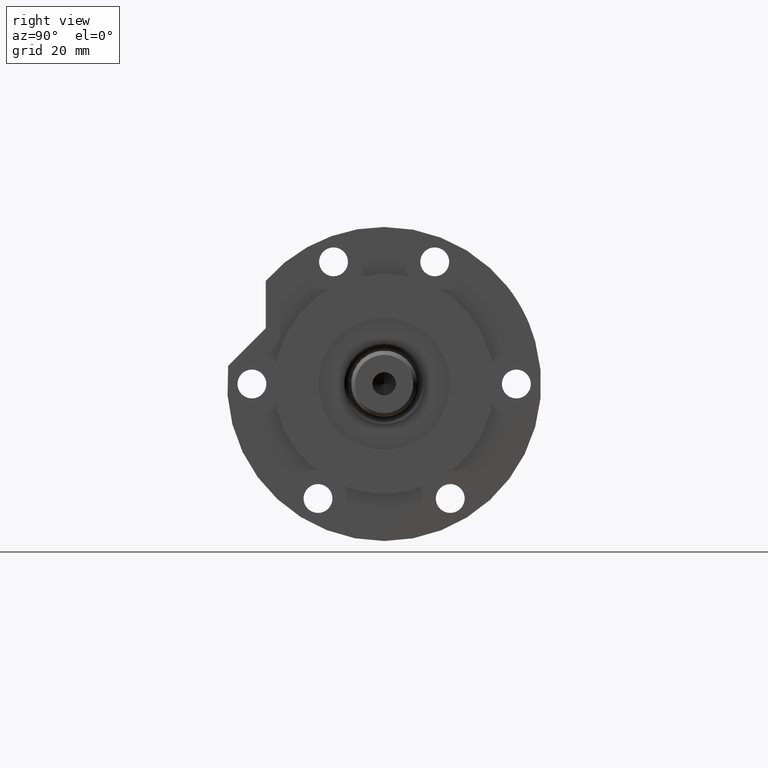
[diagram: clean part render]
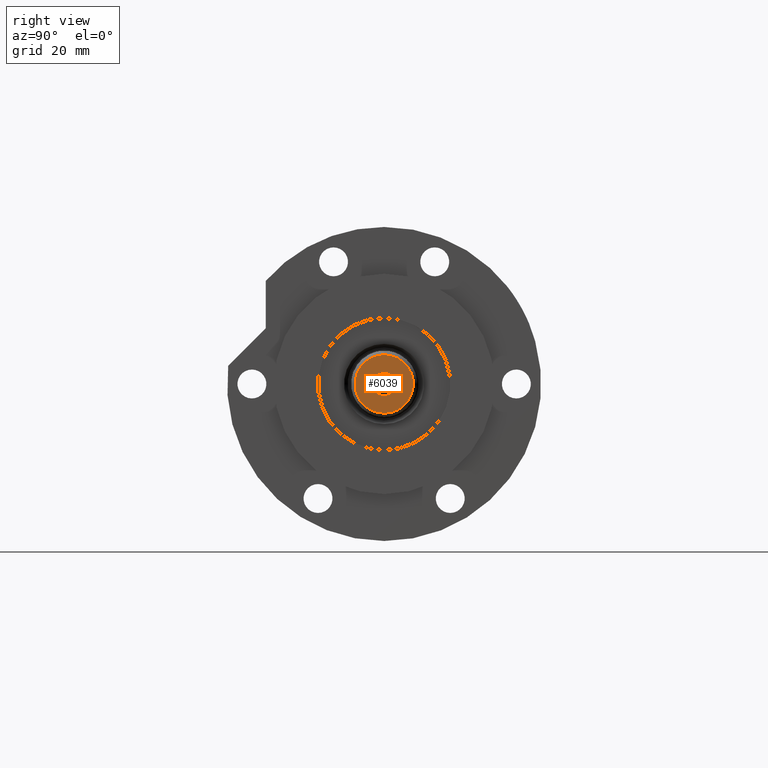
[diagram: same view with one face highlighted and labeled with its STEP entity id]
A machine part, right view. The second image highlights one B-rep face of the part: STEP entity #6039.
In plain terms, the highlighted planar face has unit normal (1, 0, -0).
Its self-contained STEP definition (entity closure, byte-faithful):
#204 = CARTESIAN_POINT ( 'NONE',  ( 4.249999999999997335, 0.000000000000000000, 172.7000000000000171 ) ) ;
#214 = DIRECTION ( 'NONE',  ( 1.000000000000000000, 0.000000000000000000, -0.000000000000000000 ) ) ;
#374 = CIRCLE ( 'NONE', #4711, 4.249999999999997335 ) ;
#438 = CARTESIAN_POINT ( 'NONE',  ( 0.000000000000000000, 0.000000000000000000, 172.7000000000000171 ) ) ;
#441 = CARTESIAN_POINT ( 'NONE',  ( 0.000000000000000000, 0.000000000000000000, 172.7000000000000171 ) ) ;
#859 = AXIS2_PLACEMENT_3D ( 'NONE', #5969, #4443, #5940 ) ;
#1065 = ORIENTED_EDGE ( 'NONE', *, *, #3096, .F. ) ;
#1112 = FACE_OUTER_BOUND ( 'NONE', #3372, .T. ) ;
#1133 = CARTESIAN_POINT ( 'NONE',  ( -4.249999999999997335, 5.204748896376248727E-16, 172.7000000000000171 ) ) ;
#1335 = AXIS2_PLACEMENT_3D ( 'NONE', #441, #4237, #4263 ) ;
#1336 = DIRECTION ( 'NONE',  ( 0.000000000000000000, 0.000000000000000000, 1.000000000000000000 ) ) ;
#1386 = VERTEX_POINT ( 'NONE', #2212 ) ;
#1398 = ORIENTED_EDGE ( 'NONE', *, *, #5345, .T. ) ;
#1414 = EDGE_CURVE ( 'NONE', #1386, #3615, #4289, .T. ) ;
#2132 = VERTEX_POINT ( 'NONE', #1133 ) ;
#2212 = CARTESIAN_POINT ( 'NONE',  ( 10.60000000000002629, 1.383850883036510842E-15, 172.7000000000000171 ) ) ;
#2283 = EDGE_LOOP ( 'NONE', ( #1065, #2676 ) ) ;
#2525 = VERTEX_POINT ( 'NONE', #204 ) ;
#2593 = DIRECTION ( 'NONE',  ( 0.000000000000000000, 0.000000000000000000, 1.000000000000000000 ) ) ;
#2676 = ORIENTED_EDGE ( 'NONE', *, *, #4319, .F. ) ;
#2705 = CARTESIAN_POINT ( 'NONE',  ( -10.60000000000002629, 0.000000000000000000, 172.7000000000000171 ) ) ;
#2755 = AXIS2_PLACEMENT_3D ( 'NONE', #3953, #2593, #214 ) ;
#3096 = EDGE_CURVE ( 'NONE', #2525, #2132, #3416, .T. ) ;
#3190 = DIRECTION ( 'NONE',  ( 1.000000000000000000, 0.000000000000000000, 0.000000000000000000 ) ) ;
#3372 = EDGE_LOOP ( 'NONE', ( #1398, #3663 ) ) ;
#3416 = CIRCLE ( 'NONE', #859, 4.249999999999997335 ) ;
#3615 = VERTEX_POINT ( 'NONE', #2705 ) ;
#3663 = ORIENTED_EDGE ( 'NONE', *, *, #1414, .T. ) ;
#3953 = CARTESIAN_POINT ( 'NONE',  ( 0.000000000000000000, 0.000000000000000000, 172.7000000000000171 ) ) ;
#4237 = DIRECTION ( 'NONE',  ( 0.000000000000000000, 0.000000000000000000, 1.000000000000000000 ) ) ;
#4263 = DIRECTION ( 'NONE',  ( 1.000000000000000000, 0.000000000000000000, 0.000000000000000000 ) ) ;
#4289 = CIRCLE ( 'NONE', #1335, 10.60000000000002629 ) ;
#4319 = EDGE_CURVE ( 'NONE', #2132, #2525, #374, .T. ) ;
#4443 = DIRECTION ( 'NONE',  ( -0.000000000000000000, -0.000000000000000000, 1.000000000000000000 ) ) ;
#4538 = DIRECTION ( 'NONE',  ( -0.000000000000000000, -0.000000000000000000, 1.000000000000000000 ) ) ;
#4626 = AXIS2_PLACEMENT_3D ( 'NONE', #438, #1336, #5103 ) ;
#4711 = AXIS2_PLACEMENT_3D ( 'NONE', #5547, #4538, #3190 ) ;
#5103 = DIRECTION ( 'NONE',  ( 1.000000000000000000, 0.000000000000000000, 0.000000000000000000 ) ) ;
#5345 = EDGE_CURVE ( 'NONE', #3615, #1386, #5919, .T. ) ;
#5405 = FACE_BOUND ( 'NONE', #2283, .T. ) ;
#5547 = CARTESIAN_POINT ( 'NONE',  ( 0.000000000000000000, 0.000000000000000000, 172.7000000000000171 ) ) ;
#5868 = PLANE ( 'NONE',  #2755 ) ;
#5919 = CIRCLE ( 'NONE', #4626, 10.60000000000002629 ) ;
#5940 = DIRECTION ( 'NONE',  ( 1.000000000000000000, 0.000000000000000000, 0.000000000000000000 ) ) ;
#5969 = CARTESIAN_POINT ( 'NONE',  ( 0.000000000000000000, 0.000000000000000000, 172.7000000000000171 ) ) ;
#6039 = ADVANCED_FACE ( 'NONE', ( #1112, #5405 ), #5868, .T. ) ;